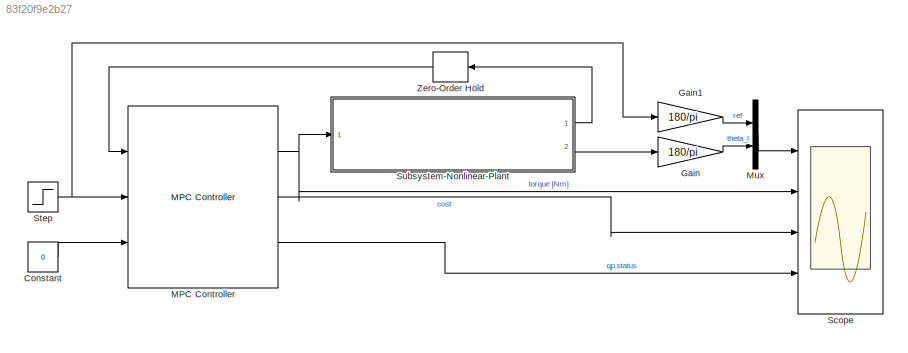
MODEL slx_83f20f9e2b27
KIND model
CONFIG AbsTol = auto
CONFIG EnableMultiTasking = off
CONFIG FixedStep = auto
CONFIG InitFcn = mpc_example_tracking
CONFIG MaxStep = auto
CONFIG MinStep = auto
CONFIG RelTol = 1e-3
CONFIG SampleTimeConstraint = Unconstrained
CONFIG SolverName = VariableStepAuto
CONFIG StartTime = 0.0
CONFIG StopTime = 3
BLOCK [Constant] Constant
  Value = 0
BLOCK [Gain] Gain
  Gain = 180/pi
BLOCK [Gain] Gain1
  Gain = 180/pi
BLOCK [Reference] MPC Controller  REF=mpclib/MPC Controller  (lib defined in mdl_ae329e0e0455)
  Ports = [3, 3]
  SCDEnableBlockLinearizationSpecification = on
  SourceBlock = mpclib/MPC Controller
  SourceProductBaseCode = MP
  SourceType = MPC
BLOCK [Mux] Mux
  DisplayOption = bar
  Inputs = 2
  Ports = [2, 1]
BLOCK [Scope] Scope
  Floating = off
  NumInputPorts = 4
  Ports = [4]
  ScopeSpecificationString = Simulink.scopes.TimeScopeBlockCfg('CurrentConfiguration', extmgr.ConfigurationSet(extmgr.Configuration('Core','General UI',true,'FigureColor',[1 1 1]),extmgr.Configuration('Core','Source UI',true),extmgr.Configuration('Sources','WiredSimulink',true),extmgr.Configuration('Visuals','Time Domain',true,'SerializedDisplays',{struct('MinYLimReal','-2.90934','MaxYLimReal','26.18404','YLabelReal','','MinY...<+4191ch>
BLOCK [Step] Step
  After = deg2rad(20)
  SampleTime = 0
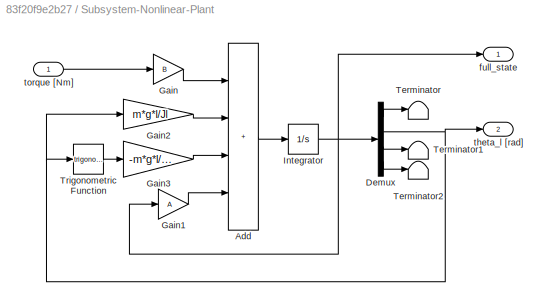
BLOCK [SubSystem] Subsystem-Nonlinear-Plant
  Ports = [1, 2]
  RequestExecContextInheritance = off
BLOCK [Sum] Subsystem-Nonlinear-Plant/Add
  IconShape = rectangular
  Inputs = ++++
  Ports = [4, 1]
BLOCK [Demux] Subsystem-Nonlinear-Plant/Demux
  Ports = [1, 4]
BLOCK [Gain] Subsystem-Nonlinear-Plant/Gain
  Gain = B
  Multiplication = Matrix(K*u)
BLOCK [Gain] Subsystem-Nonlinear-Plant/Gain1
  Gain = A
  Multiplication = Matrix(K*u)
BLOCK [Gain] Subsystem-Nonlinear-Plant/Gain2
  Gain = m*g*l/Jl
BLOCK [Gain] Subsystem-Nonlinear-Plant/Gain3
  Gain = -m*g*l/Jl
BLOCK [Integrator] Subsystem-Nonlinear-Plant/Integrator
  InitialCondition = mpc_initial_state.Plant
  Ports = [1, 1]
BLOCK [Terminator] Subsystem-Nonlinear-Plant/Terminator
BLOCK [Terminator] Subsystem-Nonlinear-Plant/Terminator1
BLOCK [Terminator] Subsystem-Nonlinear-Plant/Terminator2
BLOCK [Trigonometry] Subsystem-Nonlinear-Plant/Trigonometric Function
  Ports = [1, 1]
BLOCK [Outport] Subsystem-Nonlinear-Plant/full_state
BLOCK [Outport] Subsystem-Nonlinear-Plant/theta_l [rad]
  Port = 2
BLOCK [Inport] Subsystem-Nonlinear-Plant/torque [Nm]
BLOCK [ZeroOrderHold] Zero-Order Hold
  SampleTime = sample_time
LINE Constant:1 -> MPC Controller:3
LINE Gain1:1 -> Mux:1
LINE Gain:1 -> Mux:2
NET MPC Controller:1 -> Scope:2, Subsystem-Nonlinear-Plant:1
LINE MPC Controller:2 -> Scope:3
LINE MPC Controller:3 -> Scope:4
LINE Mux:1 -> Scope:1
NET Step:1 -> Gain1:1, MPC Controller:2
LINE Subsystem-Nonlinear-Plant/Add:1 -> Subsystem-Nonlinear-Plant/Integrator:1
LINE Subsystem-Nonlinear-Plant/Demux:1 -> Subsystem-Nonlinear-Plant/Terminator:1
NET Subsystem-Nonlinear-Plant/Demux:2 -> Subsystem-Nonlinear-Plant/Gain2:1, Subsystem-Nonlinear-Plant/Trigonometric Function:1, Subsystem-Nonlinear-Plant/theta_l [rad]:1
LINE Subsystem-Nonlinear-Plant/Demux:3 -> Subsystem-Nonlinear-Plant/Terminator1:1
LINE Subsystem-Nonlinear-Plant/Demux:4 -> Subsystem-Nonlinear-Plant/Terminator2:1
LINE Subsystem-Nonlinear-Plant/Gain1:1 -> Subsystem-Nonlinear-Plant/Add:4
LINE Subsystem-Nonlinear-Plant/Gain2:1 -> Subsystem-Nonlinear-Plant/Add:2
LINE Subsystem-Nonlinear-Plant/Gain3:1 -> Subsystem-Nonlinear-Plant/Add:3
LINE Subsystem-Nonlinear-Plant/Gain:1 -> Subsystem-Nonlinear-Plant/Add:1
NET Subsystem-Nonlinear-Plant/Integrator:1 -> Subsystem-Nonlinear-Plant/Demux:1, Subsystem-Nonlinear-Plant/Gain1:1, Subsystem-Nonlinear-Plant/full_state:1
LINE Subsystem-Nonlinear-Plant/Trigonometric Function:1 -> Subsystem-Nonlinear-Plant/Gain3:1
LINE Subsystem-Nonlinear-Plant/torque [Nm]:1 -> Subsystem-Nonlinear-Plant/Gain:1
LINE Subsystem-Nonlinear-Plant:1 -> Zero-Order Hold:1
LINE Subsystem-Nonlinear-Plant:2 -> Gain:1
LINE Zero-Order Hold:1 -> MPC Controller:1
note: NET lines group one-source signal fan-out (src -> all destinations, sorted); 1:1 wires keep LINE
